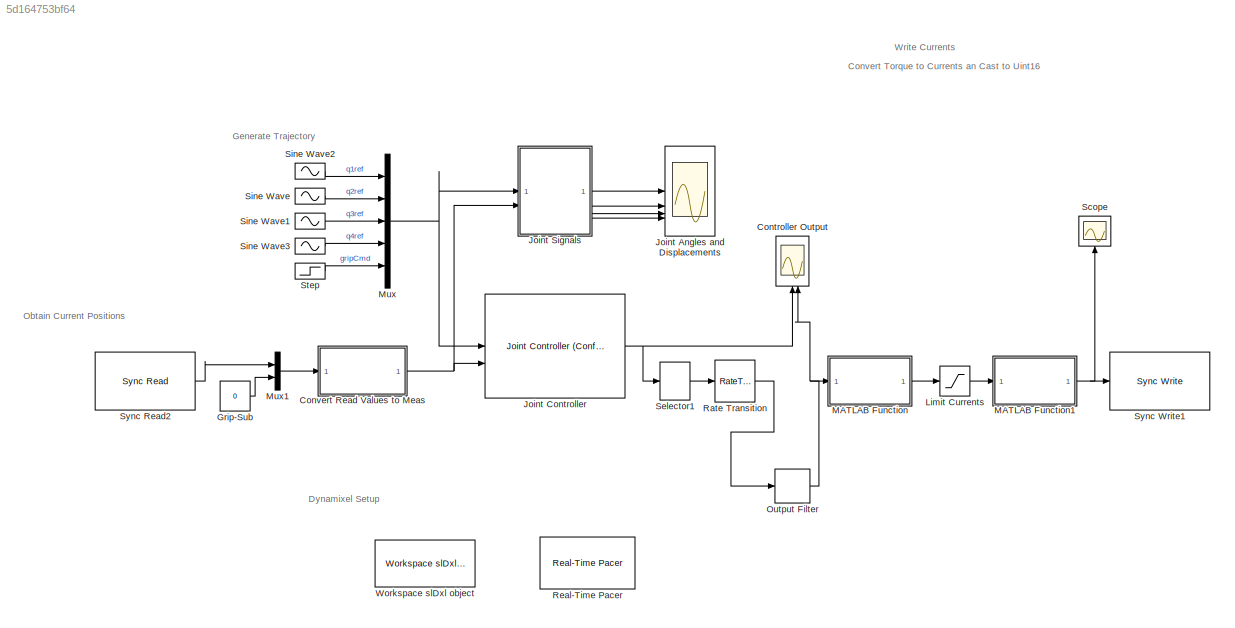
MODEL slx_5d164753bf64
KIND model
CONFIG AbsTol = auto
CONFIG EnableMultiTasking = off
CONFIG FixedStep = auto
CONFIG MaxStep = auto
CONFIG MinStep = auto
CONFIG PostLoadFcn = % Read clear parameters\nsyncReadClearParamDxl(lib_name, group_num_read);\n\n% Disable torque\ntorqueDxl(lib_name, port_num, protocol_version, motor_IDs, ...\n    motor_models, 'Disable');\n\n% Check error\ncheckErrorDxl(lib_name, port_num, protocol_version)\n\n% Close port \nclosePortDxl(lib_name,port_num);
CONFIG PreLoadFcn = openManipulatorParameters;\n\n% Set COM port\ncom_port = 'COM6';\n\n% Set baudrate\nbaud_rate = 1000000;\n\n% Set protocol Version\nprotocol_version = 2;\n\n% Initialize library and port number\n[lib_name, port_num] = initDxl(com_port);\n\n% Open port\nopenPortDxl(lib_name, port_num);\n\n% Set Baudrate\nsetBaudDxl(lib_name, port_num, baud_rate);\n\n% Find dynamixels\n[motor_IDs, motor_models] = findDxl(lib_name, port_...<+1019ch>
CONFIG RelTol = 1e-3
CONFIG SampleTimeConstraint = Unconstrained
CONFIG SolverName = VariableStepAuto
CONFIG StartFcn = % Set COM port\ncom_port = 'COM6';\n\n% Set baudrate\nbaud_rate = 1000000;\n\n% Set protocol Version\nprotocol_version = 2;\n\n% Initialize library and port number\n[lib_name, port_num] = initDxl(com_port);\n\n% Open port\nopenPortDxl(lib_name, port_num);\n\n% Set Baudrate\nsetBaudDxl(lib_name, port_num, baud_rate);\n\n% Find dynamixels\n[motor_IDs, motor_models] = findDxl(lib_name, port_num, protocol_version);\n\n% O...<+991ch>
CONFIG StartTime = 0.0
CONFIG StopFcn = % Read clear parameters\nsyncReadClearParamDxl(lib_name, group_num_read);\n\n% Disable torque\ntorqueDxl(lib_name, port_num, protocol_version, motor_IDs, ...\n    motor_models, 'Disable');\n\n% Check error\ncheckErrorDxl(lib_name, port_num, protocol_version)\n\n% Close port \nclosePortDxl(lib_name,port_num);
CONFIG StopTime = 20
BLOCK [Scope] Controller Output
  Floating = off
  NameLocation = top
  NumInputPorts = 2
  ScopeSpecificationString = Simulink.scopes.TimeScopeBlockCfg('CurrentConfiguration', extmgr.ConfigurationSet(extmgr.Configuration('Core','General UI',true),extmgr.Configuration('Core','Source UI',true),extmgr.Configuration('Sources','WiredSimulink',true,'DataLoggingVariableName','ScopeData1'),extmgr.Configuration('Visuals','Time Domain',true,'SerializedDisplays',{struct('MinYLimReal','-2.5','MaxYLimReal','2.5','YLabelReal',...<+1861ch>
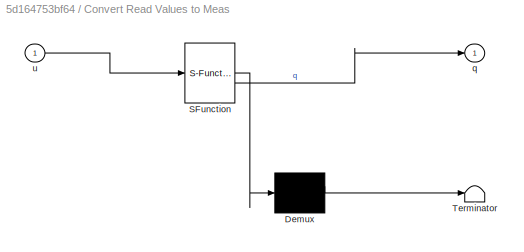
BLOCK [SubSystem] Convert Read Values to Meas
  ErrorFcn = Stateflow.Translate.translate
  LibrarySourceBlock = simulink/User-Defined\nFunctions/MATLAB Function
  PermitHierarchicalResolution = ExplicitOnly
  SFBlockType = MATLAB Function
  TreatAsAtomicUnit = on
BLOCK [Demux] Convert Read Values to Meas/ Demux 
  Outputs = 1
BLOCK [S-Function] Convert Read Values to Meas/ SFunction 
  EnableBusSupport = on
  FunctionName = sf_sfun
  PortCounts = [1 2]
  SFcnIsStateOwnerBlock = off
  SFunctionDeploymentMode = off
  Tag = Stateflow S-Function 3
BLOCK [Terminator] Convert Read Values to Meas/ Terminator 
BLOCK [Outport] Convert Read Values to Meas/q
BLOCK [Inport] Convert Read Values to Meas/u
BLOCK [Constant] Grip-Sub
  Value = 0
BLOCK [Scope] Joint Angles and Displacements
  Floating = off
  NumInputPorts = 4
  ScopeSpecificationString = Simulink.scopes.TimeScopeBlockCfg('CurrentConfiguration', extmgr.ConfigurationSet(extmgr.Configuration('Core','General UI',true),extmgr.Configuration('Core','Source UI',true),extmgr.Configuration('Sources','WiredSimulink',true),extmgr.Configuration('Visuals','Time Domain',true,'SerializedDisplays',{struct('MinYLimReal','-2.31337','MaxYLimReal','2.95331','YLabelReal','','MinYLimMag','0.00000','MaxY...<+3496ch>
BLOCK [Reference] Joint Controller  REF=OpenManipulatorLib/Joint Controller (Configuration Space)
  SourceBlock = OpenManipulatorLib/Joint Controller (Configuration Space)
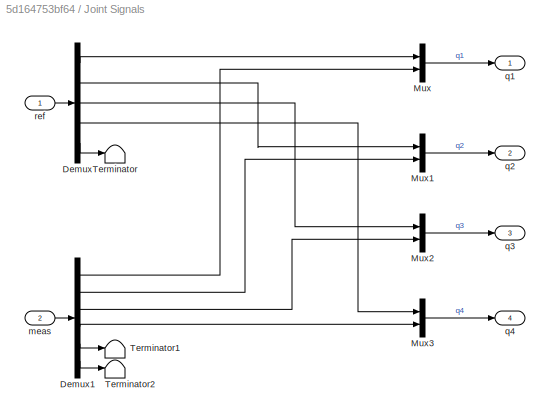
BLOCK [SubSystem] Joint Signals
BLOCK [Demux] Joint Signals/Demux
  Outputs = 5
BLOCK [Demux] Joint Signals/Demux1
  Outputs = 6
BLOCK [Mux] Joint Signals/Mux
  DisplayOption = bar
  Inputs = 2
BLOCK [Mux] Joint Signals/Mux1
  DisplayOption = bar
  Inputs = 2
BLOCK [Mux] Joint Signals/Mux2
  DisplayOption = bar
  Inputs = 2
BLOCK [Mux] Joint Signals/Mux3
  DisplayOption = bar
  Inputs = 2
BLOCK [Terminator] Joint Signals/Terminator
BLOCK [Terminator] Joint Signals/Terminator1
BLOCK [Terminator] Joint Signals/Terminator2
BLOCK [Inport] Joint Signals/meas
  Port = 2
BLOCK [Outport] Joint Signals/q1
  VectorParamsAs1DForOutWhenUnconnected = off
BLOCK [Outport] Joint Signals/q2
  Port = 2
  VectorParamsAs1DForOutWhenUnconnected = off
BLOCK [Outport] Joint Signals/q3
  Port = 3
  VectorParamsAs1DForOutWhenUnconnected = off
BLOCK [Outport] Joint Signals/q4
  Port = 4
  VectorParamsAs1DForOutWhenUnconnected = off
BLOCK [Inport] Joint Signals/ref
BLOCK [Saturate] Limit Currents
  LowerLimit = -200
  OutDataTypeStr = int16
  UpperLimit = 200
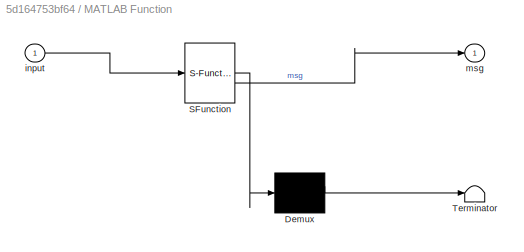
BLOCK [SubSystem] MATLAB Function
  ErrorFcn = Stateflow.Translate.translate
  LibrarySourceBlock = simulink/User-Defined\nFunctions/MATLAB Function
  PermitHierarchicalResolution = ExplicitOnly
  SFBlockType = MATLAB Function
  TreatAsAtomicUnit = on
BLOCK [Demux] MATLAB Function/ Demux 
  Outputs = 1
BLOCK [S-Function] MATLAB Function/ SFunction 
  EnableBusSupport = on
  FunctionName = sf_sfun
  PortCounts = [1 2]
  SFcnIsStateOwnerBlock = off
  SFunctionDeploymentMode = off
  Tag = Stateflow S-Function 2
BLOCK [Terminator] MATLAB Function/ Terminator 
BLOCK [Inport] MATLAB Function/input
BLOCK [Outport] MATLAB Function/msg
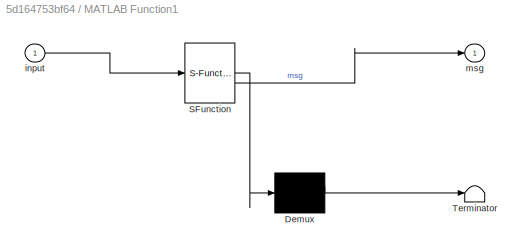
BLOCK [SubSystem] MATLAB Function1
  ErrorFcn = Stateflow.Translate.translate
  LibrarySourceBlock = simulink/User-Defined\nFunctions/MATLAB Function
  PermitHierarchicalResolution = ExplicitOnly
  SFBlockType = MATLAB Function
  TreatAsAtomicUnit = on
BLOCK [Demux] MATLAB Function1/ Demux 
  Outputs = 1
BLOCK [S-Function] MATLAB Function1/ SFunction 
  EnableBusSupport = on
  FunctionName = sf_sfun
  PortCounts = [1 2]
  SFcnIsStateOwnerBlock = off
  SFunctionDeploymentMode = off
  Tag = Stateflow S-Function 1
BLOCK [Terminator] MATLAB Function1/ Terminator 
BLOCK [Inport] MATLAB Function1/input
BLOCK [Outport] MATLAB Function1/msg
BLOCK [Mux] Mux
  DisplayOption = bar
  Inputs = 5
BLOCK [Mux] Mux1
  DisplayOption = bar
  Inputs = 2
BLOCK [DiscreteTransferFcn] Output Filter
  Commented = through
  Denominator = [1 -0.9753]
  InputPortMap = u0
  NameLocation = top
  Numerator = 0.02469
BLOCK [RateTransition] Rate Transition
BLOCK [Reference] Real-Time Pacer  REF=slDxl_lib/Real-Time Pacer
  SourceBlock = slDxl_lib/Real-Time Pacer
  SourceType = RealTime_Pacer
BLOCK [Scope] Scope
  Floating = off
  NameLocation = right
  NumInputPorts = 1
  ScopeSpecificationString = Simulink.scopes.TimeScopeBlockCfg('CurrentConfiguration', extmgr.ConfigurationSet(extmgr.Configuration('Core','General UI',true),extmgr.Configuration('Core','Source UI',true),extmgr.Configuration('Sources','WiredSimulink',true,'DataLoggingVariableName','ScopeData1'),extmgr.Configuration('Visuals','Time Domain',true,'SerializedDisplays',{struct('MinYLimReal','-8183.125','MaxYLimReal','73718.125','Y...<+1527ch>
BLOCK [Selector] Selector1
  IndexOptions = Index vector (dialog)
  Indices = [1:5]
  InputPortWidth = 6
  OutputSizes = 1
BLOCK [Sin] Sine Wave
  Amplitude = -pi/6
  Frequency = 0.2
  SampleTime = TsCtrl
BLOCK [Sin] Sine Wave1
  Amplitude = -pi/6
  Frequency = 0.3
  SampleTime = TsCtrl
BLOCK [Sin] Sine Wave2
  Amplitude = 2*pi/3
  Frequency = .3
  SampleTime = TsCtrl
BLOCK [Sin] Sine Wave3
  Amplitude = pi/6
  Frequency = 0.25
  SampleTime = TsCtrl
BLOCK [Step] Step
  SampleTime = TsCtrl
  Time = 5
BLOCK [Reference] Sync Read2  REF=dxlSimLibrary/Sync Read
  SourceBlock = dxlSimLibrary/Sync Read
  SourceType = Dynamixel Library for MATLAB and Simulink
BLOCK [Reference] Sync Write1  REF=dxlSimLibrary/Sync Write
  SourceBlock = dxlSimLibrary/Sync Write
  SourceType = Dynamixel Library for MATLAB and Simulink
BLOCK [Reference] Workspace slDxl object  REF=slDxl_lib/Workspace slDxl object
  Commented = on
  SourceBlock = slDxl_lib/Workspace slDxl object
  SourceType = slDxl Setup
ANNOTATION (root): Convert Torque to Currents an Cast to Uint16
ANNOTATION (root): Dynamixel Setup
ANNOTATION (root): Generate Trajectory
ANNOTATION (root): Obtain Current Positions
ANNOTATION (root): Write Currents
NET Convert Read Values to Meas:1 -> Joint Controller:2, Joint Signals:2
LINE Grip-Sub:1 -> Mux1:2
NET Joint Controller:1 -> Controller Output:1, Selector1:1
LINE Joint Signals/Demux1:1 -> Joint Signals/Mux:2
LINE Joint Signals/Demux1:2 -> Joint Signals/Mux1:2
LINE Joint Signals/Demux1:3 -> Joint Signals/Mux2:2
LINE Joint Signals/Demux1:4 -> Joint Signals/Mux3:2
LINE Joint Signals/Demux1:5 -> Joint Signals/Terminator1:1
LINE Joint Signals/Demux1:6 -> Joint Signals/Terminator2:1
LINE Joint Signals/Demux:1 -> Joint Signals/Mux:1
LINE Joint Signals/Demux:2 -> Joint Signals/Mux1:1
LINE Joint Signals/Demux:3 -> Joint Signals/Mux2:1
LINE Joint Signals/Demux:4 -> Joint Signals/Mux3:1
LINE Joint Signals/Demux:5 -> Joint Signals/Terminator:1
LINE Joint Signals/Mux1:1 -> Joint Signals/q2:1
LINE Joint Signals/Mux2:1 -> Joint Signals/q3:1
LINE Joint Signals/Mux3:1 -> Joint Signals/q4:1
LINE Joint Signals/Mux:1 -> Joint Signals/q1:1
LINE Joint Signals/meas:1 -> Joint Signals/Demux1:1
LINE Joint Signals/ref:1 -> Joint Signals/Demux:1
LINE Joint Signals:1 -> Joint Angles and Displacements:1
LINE Joint Signals:2 -> Joint Angles and Displacements:2
LINE Joint Signals:3 -> Joint Angles and Displacements:3
LINE Joint Signals:4 -> Joint Angles and Displacements:4
LINE Limit Currents:1 -> MATLAB Function1:1
NET MATLAB Function1:1 -> Scope:1, Sync Write1:1
LINE MATLAB Function:1 -> Limit Currents:1
LINE Mux1:1 -> Convert Read Values to Meas:1
NET Mux:1 -> Joint Controller:1, Joint Signals:1
NET Output Filter:1 -> Controller Output:2, MATLAB Function:1
LINE Rate Transition:1 -> Output Filter:1
LINE Selector1:1 -> Rate Transition:1
LINE Sine Wave1:1 -> Mux:3
LINE Sine Wave2:1 -> Mux:1
LINE Sine Wave3:1 -> Mux:4
LINE Sine Wave:1 -> Mux:2
LINE Step:1 -> Mux:5
LINE Sync Read2:1 -> Mux1:1
note: NET lines group one-source signal fan-out (src -> all destinations, sorted); 1:1 wires keep LINE
CHART MATLAB Function states=1 transitions=1
  STATE_LABEL 'eML_blk_kernel()'
  STATE_LABEL 'SCRIPT:\nfunction msg = tauToCurrent(input)\n    current_A = 0.5714 .* input;\n    msg = current_A .* 1000 ./ 2.69;\n'
CHART Convert Read Values to Meas states=1 transitions=1
  STATE_LABEL 'eML_blk_kernel()'
  STATE_LABEL 'SCRIPT:\nfunction q = convertToMeas(u)\n% 3.14 / 2048\nq = (0.001534355386369.*u) - 3.14;\n'
CHART MATLAB Function1 states=1 transitions=1
  STATE_LABEL 'eML_blk_kernel()'
  STATE_LABEL 'SCRIPT:\nfunction msg = castToUint(input)\n    msg = zeros(size(input));\n    for i = 1:length(input)\n        msg(i) = typecast(int16(input(i)), "uint16");\n    end\nend'
CHART  states=0 transitions=0
CHART  states=0 transitions=0
CHART  states=0 transitions=0
